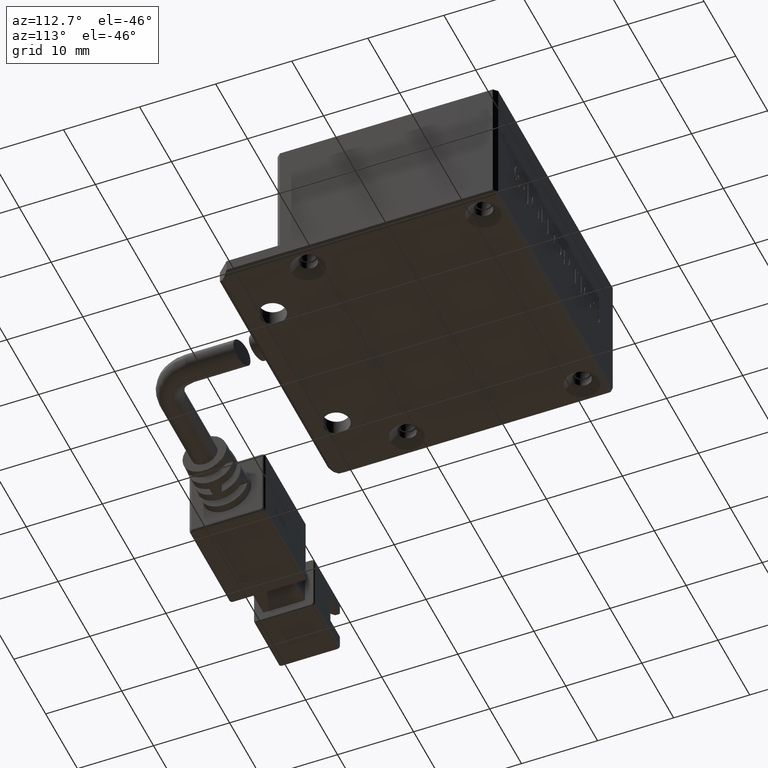
[diagram: clean part render]
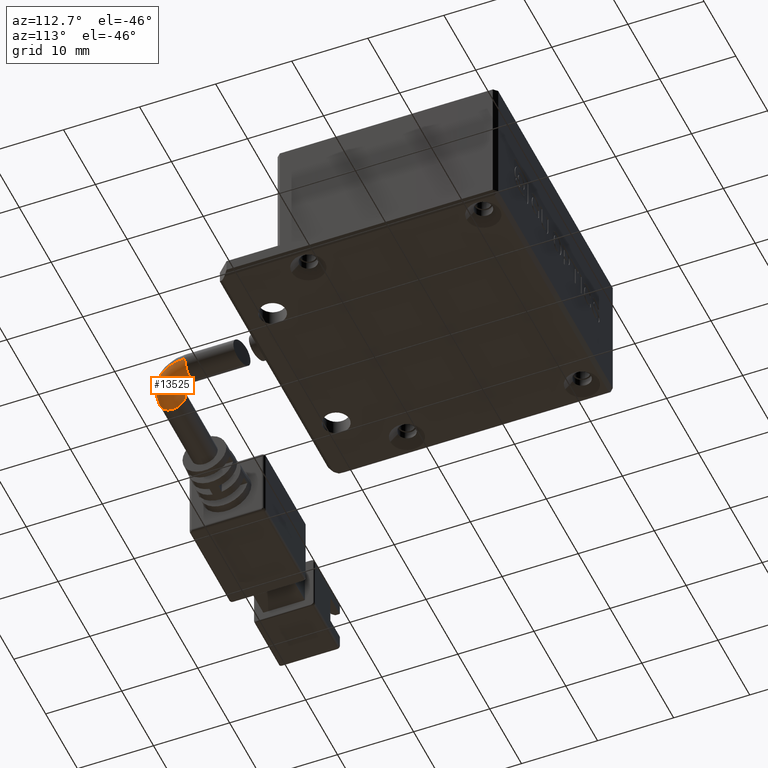
[diagram: same view with one face highlighted and labeled with its STEP entity id]
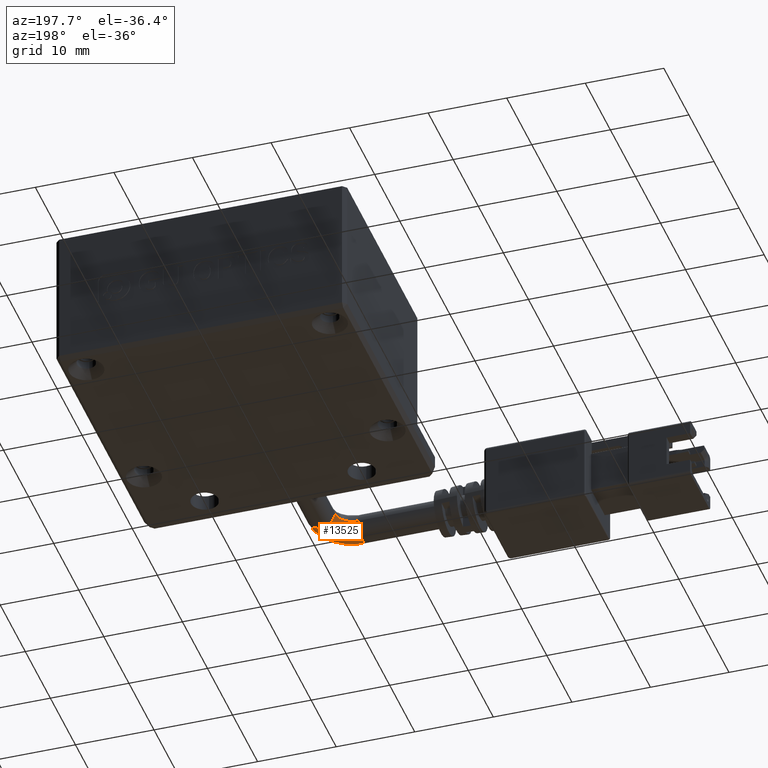
[diagram: same view with one face highlighted and labeled with its STEP entity id]
A machine part, auxiliary view. The second image highlights one B-rep face of the part: STEP entity #13525.
A second angle (auxiliary view) of the same face is appended — the face is thin or edge-on in the first view.
In plain terms, the highlighted face is a freeform B-spline surface patch.
Its self-contained STEP definition (entity closure, byte-faithful):
#37 = CIRCLE ( 'NONE', #10529, 1.749999999999999800 ) ;
#46 = VERTEX_POINT ( 'NONE', #6970 ) ;
#168 = ORIENTED_EDGE ( 'NONE', *, *, #6198, .T. ) ;
#743 = CARTESIAN_POINT ( 'NONE',  ( -3.529400534555177300, -39.80364642993505700, 0.4999999999836312000 ) ) ;
#1274 = ORIENTED_EDGE ( 'NONE', *, *, #6671, .F. ) ;
#1494 = AXIS2_PLACEMENT_3D ( 'NONE', #4540, #15443, #6089 ) ;
#1878 = AXIS2_PLACEMENT_3D ( 'NONE', #13220, #3843, #14763 ) ;
#2317 = CARTESIAN_POINT ( 'NONE',  ( 2.220599465444824900, -37.42191844628975200, 0.4999999999836311500 ) ) ;
#3708 = DIRECTION ( 'NONE',  ( -1.836970198721029700E-016, -1.000000000000000000, 1.232595164407830900E-032 ) ) ;
#3843 = DIRECTION ( 'NONE',  ( -1.000000000000000000, -6.162975822039154700E-033, -5.345529420184391300E-049 ) ) ;
#3891 = CARTESIAN_POINT ( 'NONE',  ( -3.529400534555177300, -36.30364642993504300, 0.4999999999836312000 ) ) ;
#4540 = CARTESIAN_POINT ( 'NONE',  ( -3.529400534555176400, -34.05364642993505000, 3.999999999983630400 ) ) ;
#4898 = AXIS2_PLACEMENT_3D ( 'NONE', #5688, #16595, #7258 ) ;
#4991 = VERTEX_POINT ( 'NONE', #8173 ) ;
#5444 = CARTESIAN_POINT ( 'NONE',  ( -1.279400534555174000, -35.37166591459558900, 0.4999999999836311500 ) ) ;
#5478 = VERTEX_POINT ( 'NONE', #14498 ) ;
#5688 = CARTESIAN_POINT ( 'NONE',  ( -3.529400534555176400, -34.05364642993505000, 3.999999999983630400 ) ) ;
#5735 = ORIENTED_EDGE ( 'NONE', *, *, #6460, .T. ) ;
#6052 = EDGE_CURVE ( 'NONE', #4991, #11763, #10576, .T. ) ;
#6089 = DIRECTION ( 'NONE',  ( 0.0000000000000000000, 1.000000000000000000, 0.0000000000000000000 ) ) ;
#6198 = EDGE_CURVE ( 'NONE', #4991, #46, #16675, .T. ) ;
#6270 = EDGE_CURVE ( 'NONE', #46, #5478, #13754, .T. ) ;
#6460 = EDGE_CURVE ( 'NONE', #5478, #9375, #37, .T. ) ;
#6671 = EDGE_CURVE ( 'NONE', #11763, #9375, #7123, .T. ) ;
#6970 = CARTESIAN_POINT ( 'NONE',  ( -1.279400534555176400, -34.05364642993505000, 3.999999999983630400 ) ) ;
#7010 = CARTESIAN_POINT ( 'NONE',  ( -3.529400534555177300, -36.30364642993505000, 3.999999999983630400 ) ) ;
#7123 = CIRCLE ( 'NONE', #4898, 5.749999999999998200 ) ;
#7258 = DIRECTION ( 'NONE',  ( 0.0000000000000000000, 1.000000000000000000, 0.0000000000000000000 ) ) ;
#7940 = CARTESIAN_POINT ( 'NONE',  ( 0.4705994654448236700, -34.05364642993505000, 3.999999999983630400 ) ) ;
#8173 = CARTESIAN_POINT ( 'NONE',  ( -3.529400534555176400, -36.30364642993505700, 3.999999999983630400 ) ) ;
#8538 = CARTESIAN_POINT ( 'NONE',  ( -0.1611285182004746400, -39.80364642993505000, 3.999999999983630900 ) ) ;
#8602 = CARTESIAN_POINT ( 'NONE',  ( -1.279400534555173800, -35.37166591459558200, 3.999999999983630900 ) ) ;
#9375 = VERTEX_POINT ( 'NONE', #9903 ) ;
#9493 = DIRECTION ( 'NONE',  ( 1.000000000000000000, 0.0000000000000000000, 0.0000000000000000000 ) ) ;
#9601 = CARTESIAN_POINT ( 'NONE',  ( -3.529400534555176400, -39.80364642993505700, 3.999999999983630400 ) ) ;
#9903 = CARTESIAN_POINT ( 'NONE',  ( 2.220599465444822700, -34.05364642993505000, 3.999999999983630400 ) ) ;
#10072 = CARTESIAN_POINT ( 'NONE',  ( 2.220599465444825300, -34.05364642993505000, 3.999999999983630400 ) ) ;
#10529 = AXIS2_PLACEMENT_3D ( 'NONE', #13093, #3708, #14627 ) ;
#10576 = CIRCLE ( 'NONE', #1878, 1.750000000000001600 ) ;
#10907 = AXIS2_PLACEMENT_3D ( 'NONE', #7940, #18776, #9493 ) ;
#11672 = CARTESIAN_POINT ( 'NONE',  ( -0.1611285182004746900, -39.80364642993505700, 0.4999999999836311500 ) ) ;
#11763 = VERTEX_POINT ( 'NONE', #9601 ) ;
#13093 = CARTESIAN_POINT ( 'NONE',  ( 0.4705994654448236700, -34.05364642993505000, 3.999999999983630400 ) ) ;
#13220 = CARTESIAN_POINT ( 'NONE',  ( -3.529400534555176400, -38.05364642993505700, 3.999999999983630400 ) ) ;
#13266 = CARTESIAN_POINT ( 'NONE',  ( 2.220599465444825300, -34.05364642993505000, 0.4999999999836312000 ) ) ;
#13525 = ADVANCED_FACE ( 'NONE', ( #14694 ), #15773, .T. ) ;
#13754 = CIRCLE ( 'NONE', #10907, 1.749999999999999800 ) ;
#14498 = CARTESIAN_POINT ( 'NONE',  ( 0.4705994654448236700, -34.05364642993505000, 2.249999999983630000 ) ) ;
#14627 = DIRECTION ( 'NONE',  ( 1.000000000000000000, 0.0000000000000000000, 0.0000000000000000000 ) ) ;
#14694 = FACE_OUTER_BOUND ( 'NONE', #18730, .T. ) ;
#14722 = ORIENTED_EDGE ( 'NONE', *, *, #6270, .T. ) ;
#14763 = DIRECTION ( 'NONE',  ( 0.0000000000000000000, -1.000000000000000000, 0.0000000000000000000 ) ) ;
#14811 = CARTESIAN_POINT ( 'NONE',  ( -2.211381049894643800, -36.30364642993505000, 0.4999999999836311500 ) ) ;
#15443 = DIRECTION ( 'NONE',  ( -5.345529420184392100E-049, 1.232595164407830900E-032, 1.000000000000000000 ) ) ;
#15773 =( BOUNDED_SURFACE ( )  B_SPLINE_SURFACE ( 3, 3, ( 
 ( #17741, #8538, #19372, #10072 ),
 ( #743, #11672, #2317, #13266 ),
 ( #3891, #14811, #5444, #16350 ),
 ( #7010, #17870, #8602, #19435 ) ),
 .UNSPECIFIED., .F., .F., .T. ) 
 B_SPLINE_SURFACE_WITH_KNOTS ( ( 4, 4 ),
 ( 4, 4 ),
 ( 0.0000000000000000000, 1.000000000000000000 ),
 ( 0.0000000000000000000, 1.000000000000000000 ),
 .UNSPECIFIED. ) 
 GEOMETRIC_REPRESENTATION_ITEM ( )  RATIONAL_B_SPLINE_SURFACE ( (
 ( 1.000000000000000000, 0.8047378541243649400, 0.8047378541243649400, 1.000000000000000000),
 ( 0.3333333333333333700, 0.2682459513747883500, 0.2682459513747883500, 0.3333333333333333700),
 ( 0.3333333333333333700, 0.2682459513747883500, 0.2682459513747883500, 0.3333333333333333700),
 ( 1.000000000000000000, 0.8047378541243649400, 0.8047378541243649400, 1.000000000000000000) ) ) 
 REPRESENTATION_ITEM ( '' )  SURFACE ( )  );
#16159 = ORIENTED_EDGE ( 'NONE', *, *, #6052, .F. ) ;
#16350 = CARTESIAN_POINT ( 'NONE',  ( -1.279400534555178000, -34.05364642993504300, 0.4999999999836312000 ) ) ;
#16595 = DIRECTION ( 'NONE',  ( -5.345529420184392100E-049, 1.232595164407830900E-032, 1.000000000000000000 ) ) ;
#16675 = CIRCLE ( 'NONE', #1494, 2.249999999999995100 ) ;
#17741 = CARTESIAN_POINT ( 'NONE',  ( -3.529400534555177300, -39.80364642993505000, 3.999999999983630400 ) ) ;
#17870 = CARTESIAN_POINT ( 'NONE',  ( -2.211381049894643800, -36.30364642993505000, 3.999999999983630900 ) ) ;
#18730 = EDGE_LOOP ( 'NONE', ( #16159, #168, #14722, #5735, #1274 ) ) ;
#18776 = DIRECTION ( 'NONE',  ( -1.836970198721029700E-016, -1.000000000000000000, 1.232595164407830900E-032 ) ) ;
#19372 = CARTESIAN_POINT ( 'NONE',  ( 2.220599465444825300, -37.42191844628975200, 3.999999999983630900 ) ) ;
#19435 = CARTESIAN_POINT ( 'NONE',  ( -1.279400534555177800, -34.05364642993504300, 3.999999999983630400 ) ) ;